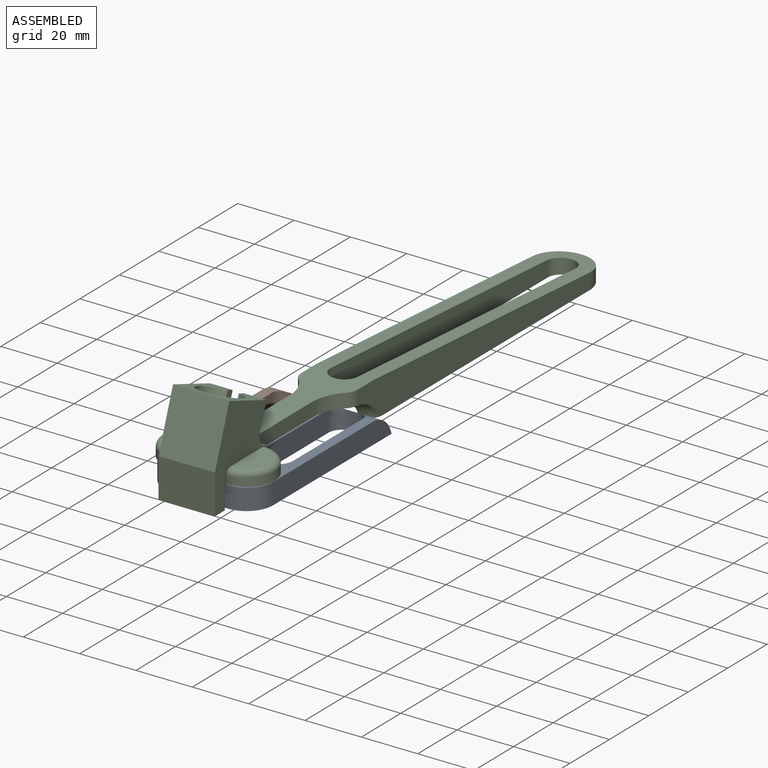
[diagram: assembled view]
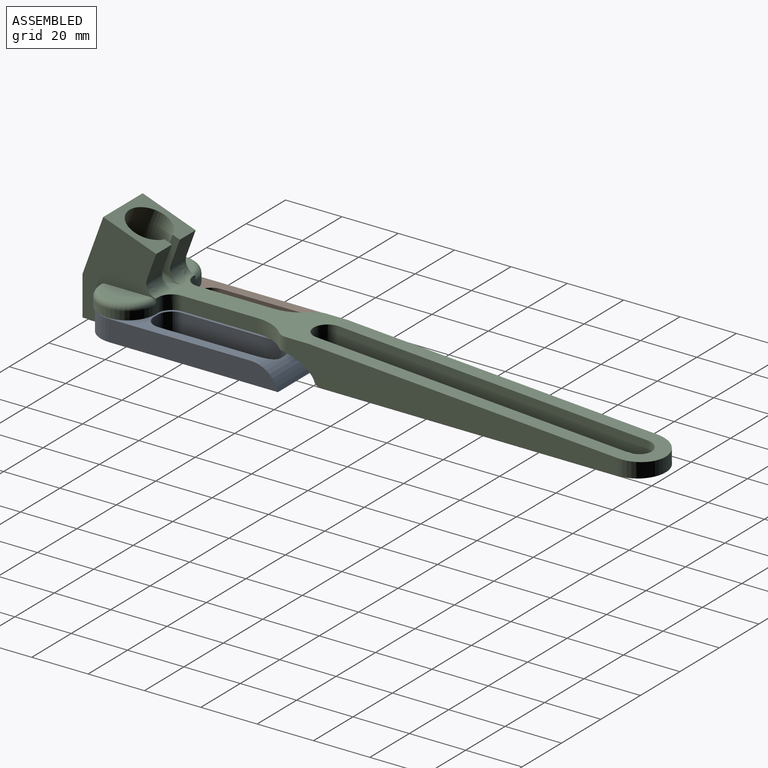
[diagram: assembled view, second angle]
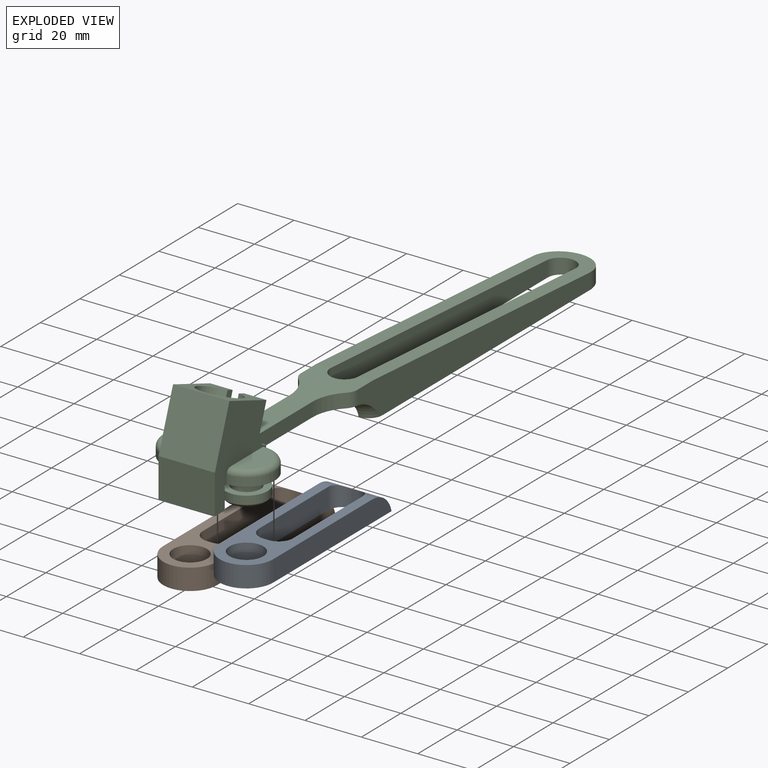
[diagram: exploded view]
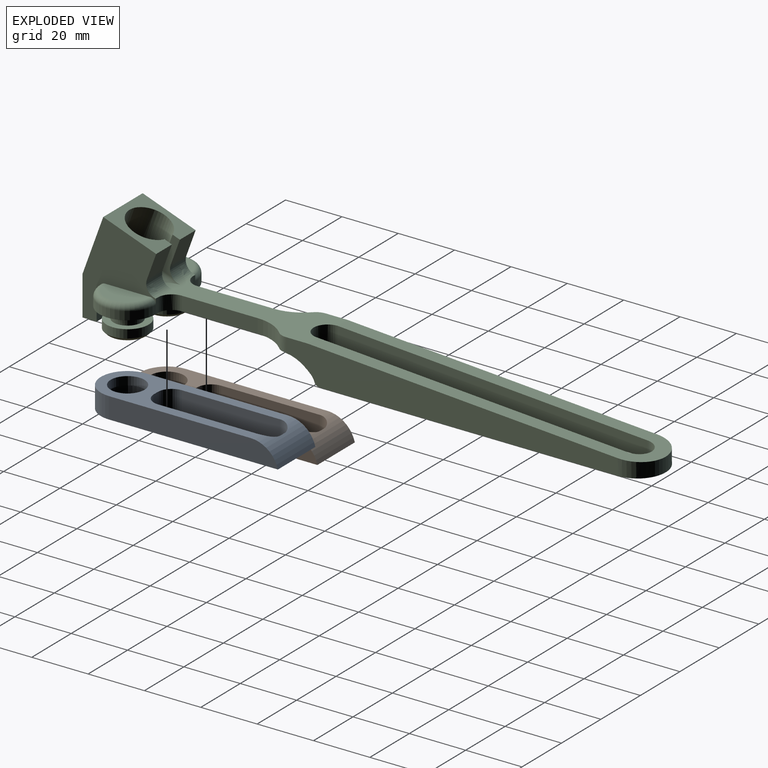
[diagram: exploded view, second angle]
ASSEMBLY  parts=3 mates=2
PART A: 17 faces, bbox 19x69.5x7.5 mm
  f0: plane 60x7.5mm, normal (1,0,0), area 431.2mm2, adj f1,f8,f9,f12
  f1: cylinder r=9.5mm len=19mm, axis (0,0,-1), area 223.8mm2, adj f0,f5,f8,f9
  f2: plane 35x7.5mm, normal (-1,0,0), area 262.5mm2, adj f8,f9,f13,f16
  f3: plane 6.34x1.93mm, normal (0,1,0), area 12.2mm2, adj f9,f12,f13,f14
  f4: plane 35x7.5mm, normal (1,0,0), area 262.5mm2, adj f8,f9,f14,f15
  f5: plane 60x7.5mm, normal (-1,0,0), area 431.2mm2, adj f1,f8,f9,f12
  f6: plane 7.5x1.93mm, normal (0,-1,0), area 14.5mm2, adj f8,f9,f15,f16
  f7: cylinder r=6mm len=12mm, axis (0,0,-1), area 113.1mm2, adj f8,f11
  f8: plane 59.82x19mm, normal (0,0,1), area 514.4mm2, adj f0,f1,f2,f4,f5,f6,f7,f12
  f9: plane 69.5x19mm, normal (0,0,-1), area 539.3mm2, adj f0,f1,f2,f3,f4,f5,f6,f10
  f10: cylinder r=8.5mm len=17mm, axis (0,0,-1), area 240.3mm2, adj f9,f11
  f11: plane 17x17mm, normal (0,0,-1), area 113.9mm2, adj f7,f10
  f12: cylinder r=10mm len=19mm, axis (-1,0,0), area 203.9mm2, adj f0,f3,f5,f8,f9,f13,f14
  f13: cylinder r=5mm len=7.5mm, axis (0,0,-1), area 54.6mm2, adj f2,f3,f8,f9,f12
  f14: cylinder r=5mm len=7.5mm, axis (0,0,1), area 54.6mm2, adj f3,f4,f8,f9,f12
  f15: cylinder r=5mm len=7.5mm, axis (0,0,-1), area 58.9mm2, adj f4,f6,f8,f9
  f16: cylinder r=5mm len=7.5mm, axis (0,0,1), area 58.9mm2, adj f2,f6,f8,f9
PART B: same geometry as A
PART C: 61 faces, bbox 58.1x200.7x36.9 mm
  f0: cylinder r=4mm len=5.37mm, axis (1,0,0), area 35.1mm2, adj f2,f3,f47,f49,f57
  f1: plane 16x8mm, normal (0,0,1), area 100.5mm2, adj f16,f59
  f2: plane 58.27x20mm, normal (0,0,1), area 570.8mm2, adj f0,f8,f9,f12,f37,f38,f40,f42
  f3: plane 9.04x8mm, normal (0,0.94,-0.34), area 76.6mm2, adj f0,f4,f11,f47,f57,f58
  f4: plane 20x18.79mm, normal (0,0.34,0.94), area 212.9mm2, adj f3,f11,f13,f14,f16,f44,f47,f48
  f5: plane 66.01x40mm, normal (0,0,-1), area 988.8mm2, adj f11,f16,f17,f19,f20,f21,f25,f29
  f6: plane 16x8mm, normal (0,0,1), area 100.5mm2, adj f11,f60
  f7: plane 120.08x20.08mm, normal (0,0,-1), area 1207.1mm2, adj f8,f9,f18,f29,f30,f34,f35,f36
  f8: plane 117.72x13mm, normal (1,0,0), area 1065.9mm2, adj f2,f7,f12,f18,f29,f50
  f9: plane 117.72x13mm, normal (-1,0,0), area 1065.9mm2, adj f2,f7,f12,f18,f30,f51
  f10: plane 20x5mm, normal (0,0,-1), area 100mm2, adj f11,f15,f16,f17
  f11: plane 34.2x26.14mm, normal (1,0,0), area 457.1mm2, adj f3,f4,f5,f6,f10,f14,f15,f17
  f12: plane 120.65x20.67mm, normal (0,0.07,1), area 1220.1mm2, adj f2,f8,f9,f18,f34,f35,f36
  f13: plane 9.04x8mm, normal (0,0.94,-0.34), area 76.6mm2, adj f4,f16,f48,f54,f55,f56
  f14: plane 20.2x20mm, normal (0,-0.94,0.34), area 429.8mm2, adj f4,f11,f15,f16
  f15: plane 20x14mm, normal (0,-1,0), area 280mm2, adj f10,f11,f14,f16
  f16: plane 34.2x26.14mm, normal (-1,0,0), area 457.1mm2, adj f1,f4,f5,f10,f13,f14,f15,f17
  f17: plane 20x8mm, normal (0,1,0), area 160mm2, adj f5,f10,f11,f16
  f18: cylinder r=10mm len=20mm, axis (0,0,-1), area 163.9mm2, adj f7,f8,f9,f12
  f19: cylinder r=10mm len=20mm, axis (0,0,-1), area 94.2mm2, adj f5,f16,f41,f59
  f20: cylinder r=10mm len=20mm, axis (0,0,-1), area 94.2mm2, adj f5,f11,f39,f60
  f21: cylinder r=5mm len=10mm, axis (0,0,1), area 125.7mm2, adj f5,f22
  f22: plane 15x15mm, normal (0,0,1), area 98.2mm2, adj f21,f24
  f23: plane 13x13mm, normal (0,0,-1), area 132.7mm2, adj f32
  f24: cylinder r=7.5mm len=15mm, axis (0,0,1), area 141.4mm2, adj f22,f32
  f25: cylinder r=5mm len=10mm, axis (0,0,1), area 125.7mm2, adj f5,f26
  f26: plane 15x15mm, normal (0,0,1), area 98.2mm2, adj f25,f28
  f27: plane 13x13mm, normal (0,0,-1), area 132.7mm2, adj f33
  f28: cylinder r=7.5mm len=15mm, axis (0,0,1), area 141.4mm2, adj f26,f33
  f29: torus R=14.8mm, axis (0,0,-1), area 76.3mm2, adj f5,f7,f8,f31,f50
  f30: torus R=14.8mm, axis (0,0,-1), area 76.3mm2, adj f5,f7,f9,f31,f51
  f31: cylinder r=10mm len=10mm, axis (-1,0,0), area 63.7mm2, adj f5,f29,f30,f37
  f32: cone r=6.5mm half-angle=45deg, axis (0,0,1), area 62.2mm2, adj f23,f24
  f33: cone r=6.5mm half-angle=45deg, axis (0,0,1), area 62.2mm2, adj f27,f28
  f34: plane 110x13mm, normal (-1,0,0), area 1026.6mm2, adj f7,f12,f36,f37
  f35: plane 110x13mm, normal (1,0,0), area 1026.6mm2, adj f7,f12,f36,f37
  f36: cylinder r=5mm len=10mm, axis (0,0,1), area 89mm2, adj f7,f12,f34,f35
  f37: cylinder r=5mm len=13mm, axis (0,0,-1), area 123.6mm2, adj f2,f31,f34,f35
  f38: plane 27.02x5mm, normal (1,0,0), area 135.1mm2, adj f2,f5,f43,f53
  f39: plane 5x1mm, normal (0,1,0), area 5mm2, adj f5,f11,f20,f53,f58
  f40: plane 27.02x5mm, normal (-1,0,0), area 135.1mm2, adj f2,f5,f42,f52
  f41: plane 5x1mm, normal (0,1,0), area 5mm2, adj f5,f16,f19,f52,f54
  f42: cylinder r=14.97mm len=10.7mm, axis (0,0,-1), area 59.6mm2, adj f2,f5,f40,f51
  f43: cylinder r=14.97mm len=10.7mm, axis (0,0,-1), area 59.6mm2, adj f2,f5,f38,f50
  f44: cylinder r=7.5mm len=20.17mm, axis (0,0.34,0.94), area 697.3mm2, adj f4,f46,f47,f48,f49
  f45: plane 5x4.7mm, normal (0,0.34,0.94), area 19.6mm2, adj f46
  f46: torus R=2.5mm, axis (0,0.34,0.94), area 280.4mm2, adj f44,f45
  f47: plane 13.83x7.05mm, normal (-1,0,0), area 38mm2, adj f0,f3,f4,f44,f49
  f48: plane 13.83x7.05mm, normal (1,0,0), area 38mm2, adj f4,f13,f44,f49,f56
  f49: cylinder r=2mm len=8.33mm, axis (0,0.94,-0.34), area 30.7mm2, adj f0,f2,f44,f47,f48,f56
  f50: cylinder r=5mm len=5.06mm, axis (0,0,-1), area 19.9mm2, adj f2,f5,f8,f29,f43
  f51: cylinder r=5mm len=5.06mm, axis (0,0,-1), area 19.9mm2, adj f2,f5,f9,f30,f42
  f52: cylinder r=5mm len=5mm, axis (0,0,-1), area 39.3mm2, adj f2,f5,f40,f41,f55
  f53: cylinder r=5mm len=5mm, axis (0,0,1), area 39.3mm2, adj f2,f5,f38,f39,f57
  f54: cylinder r=4mm len=5.32mm, axis (1,0,0), area 7.1mm2, adj f13,f16,f41,f55
  f55: bspline ~6.26x5.94mm, area 17.7mm2, adj f13,f52,f54,f56
  f56: cylinder r=4mm len=5.37mm, axis (1,0,0), area 35.1mm2, adj f2,f13,f48,f49,f55
  f57: bspline ~6.06x5.72mm, area 17.7mm2, adj f0,f3,f53,f58
  f58: cylinder r=4mm len=5.32mm, axis (1,0,0), area 7.1mm2, adj f3,f11,f39,f57
  f59: torus R=8mm, axis (0,0,-1), area 91.5mm2, adj f1,f16,f19
  f60: torus R=8mm, axis (0,0,-1), area 91.5mm2, adj f6,f11,f20
PLACE A rot(axis=(0,0,1),180deg) t=(12,-8.7,0)mm
PLACE B rot(axis=(0,0,-1),180deg) t=(-8,-8.7,0)mm
PLACE C at identity fixed
MATE revolute B.f1 <-> C.f25  axis (0,0,1) through (0,16,0)mm
MATE revolute A.f1 <-> C.f20  axis (0,0,1) through (20,16,0)mm
